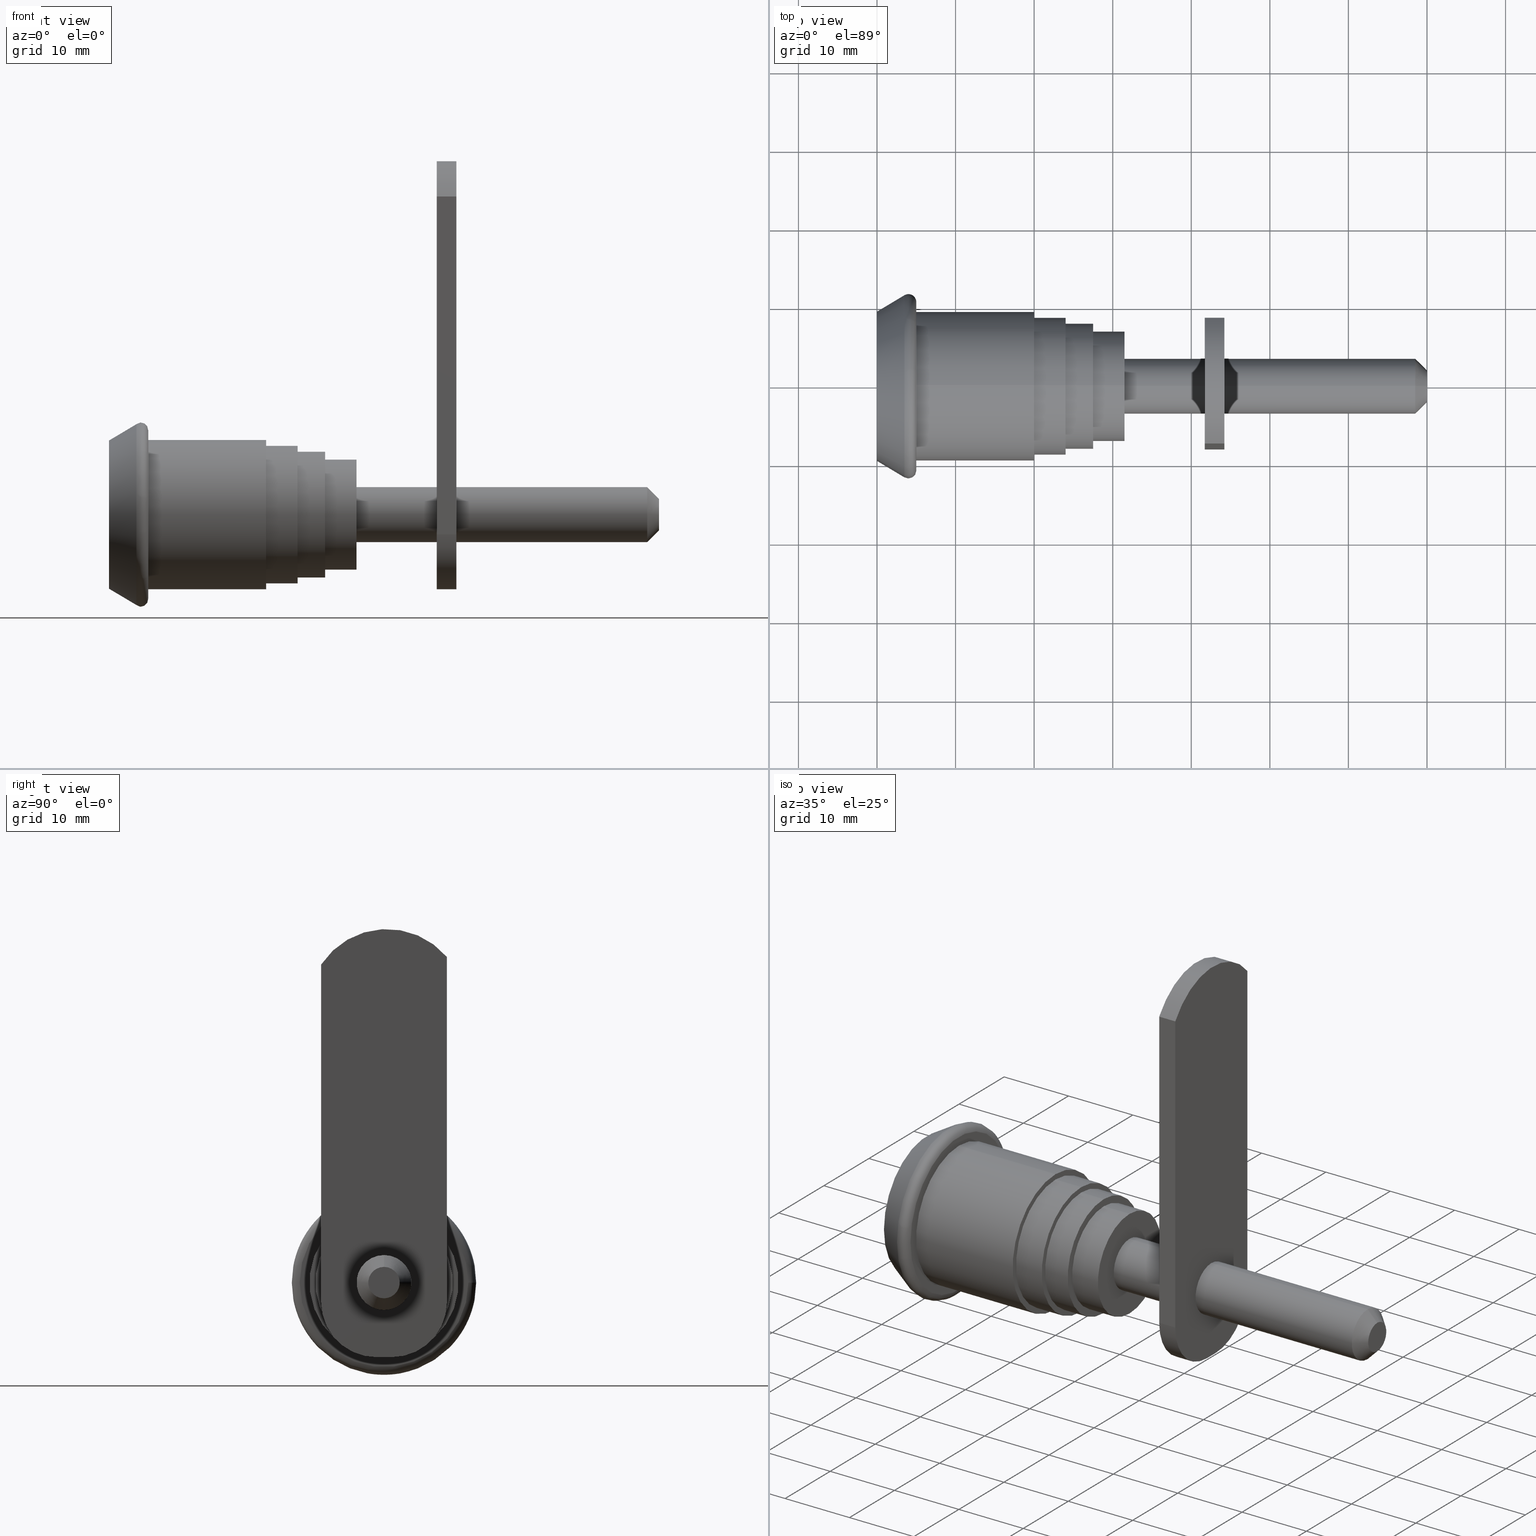
[diagram: canonical four-view strip — front | top / right | iso, engineering-drawing reading convention]
A machine part, canonical four-view strip (front | top / right | iso — engineering-drawing reading convention). The complete STEP part file that produces these views, byte-faithful:
ISO-10303-21;
HEADER;
/****************************************************************
 * Generated by software with PDE/Lib inside                    *
 * PDElib Version v4.4, created Mon 02/23/2004                  *
 * International Technegroup Inc. (www.iti-oh.com)              *
 ****************************************************************/
FILE_DESCRIPTION(('STEP AP203'),'2;1');
FILE_NAME('24.001.00.stp','2011-03-21T16:09:42',(''),(''),'2009.3.110','THINKDESIGN','');
FILE_SCHEMA(('CONFIG_CONTROL_DESIGN'));
ENDSEC;
DATA;
#2=CARTESIAN_POINT('',(41.717976448594527,0.361019487802878,34.999999999859938));
#3=DIRECTION('',(1.0,0.0,0.0));
#4=DIRECTION('',(0.0,1.0,1.224647E-016));
#5=AXIS2_PLACEMENT_3D('',#2,#3,#4);
#6=CYLINDRICAL_SURFACE('',#5,9.999999999960073);
#7=CARTESIAN_POINT('',(41.717976448594527,7.999999999968168,41.453369409242946));
#8=VERTEX_POINT('',#7);
#9=CARTESIAN_POINT('',(41.717976448594527,-7.999999999968168,40.485740890962461));
#10=VERTEX_POINT('',#9);
#11=CARTESIAN_POINT('',(41.717976448594527,0.361019487802878,34.999999999859938));
#12=DIRECTION('',(1.0,0.0,0.0));
#13=DIRECTION('',(0.0,-1.0,0.0));
#14=AXIS2_PLACEMENT_3D('',#11,#12,#13);
#15=CIRCLE('',#14,9.999999999960073);
#16=EDGE_CURVE('',#8,#10,#15,.T.);
#17=ORIENTED_EDGE('',*,*,#16,.T.);
#18=CARTESIAN_POINT('',(44.217976448584523,-7.999999999968168,40.485740890962461));
#19=VERTEX_POINT('',#18);
#20=CARTESIAN_POINT('',(44.217976448584523,-7.999999999968168,40.485740890962461));
#21=DIRECTION('',(-1.0,0.0,0.0));
#22=VECTOR('',#21,2.499999999989996);
#23=LINE('',#20,#22);
#24=EDGE_CURVE('',#19,#10,#23,.T.);
#25=ORIENTED_EDGE('',*,*,#24,.F.);
#26=CARTESIAN_POINT('',(44.217976448584523,7.999999999968168,41.453369409242946));
#27=VERTEX_POINT('',#26);
#28=CARTESIAN_POINT('',(44.217976448584523,0.361019487802878,34.999999999859938));
#29=DIRECTION('',(1.0,0.0,0.0));
#30=DIRECTION('',(0.0,-1.0,0.0));
#31=AXIS2_PLACEMENT_3D('',#28,#29,#30);
#32=CIRCLE('',#31,9.999999999960073);
#33=EDGE_CURVE('',#27,#19,#32,.T.);
#34=ORIENTED_EDGE('',*,*,#33,.F.);
#35=CARTESIAN_POINT('',(41.717976448594527,7.999999999968168,41.453369409242946));
#36=DIRECTION('',(1.0,0.0,0.0));
#37=VECTOR('',#36,2.499999999989996);
#38=LINE('',#35,#37);
#39=EDGE_CURVE('',#8,#27,#38,.T.);
#40=ORIENTED_EDGE('',*,*,#39,.F.);
#41=EDGE_LOOP('',(#17,#25,#34,#40));
#42=FACE_OUTER_BOUND('',#41,.T.);
#43=ADVANCED_FACE('',(#42),#6,.T.);
#44=CARTESIAN_POINT('',(41.717976448594527,8.000039370047489,-9.500039370041323));
#45=DIRECTION('',(-1.0,0.0,0.0));
#46=DIRECTION('',(0.0,-1.0,0.0));
#47=AXIS2_PLACEMENT_3D('',#44,#45,#46);
#48=PLANE('',#47);
#49=CARTESIAN_POINT('',(41.717976448594527,7.999999999968168,-2.499999999962002));
#50=VERTEX_POINT('',#49);
#51=CARTESIAN_POINT('',(41.717976448594527,7.999999999968168,41.453369409242946));
#52=DIRECTION('',(0.0,0.0,-1.0));
#53=VECTOR('',#52,43.953369409204946);
#54=LINE('',#51,#53);
#55=EDGE_CURVE('',#8,#50,#54,.T.);
#56=ORIENTED_EDGE('',*,*,#55,.T.);
#57=CARTESIAN_POINT('',(41.717976448594527,0.999999999968168,-9.499999999962002));
#58=VERTEX_POINT('',#57);
#59=CARTESIAN_POINT('',(41.717976448594527,0.999999999968168,-2.499999999962002));
#60=DIRECTION('',(1.0,0.0,0.0));
#61=DIRECTION('',(0.0,0.0,-1.0));
#62=AXIS2_PLACEMENT_3D('',#59,#60,#61);
#63=CIRCLE('',#62,7.0);
#64=EDGE_CURVE('',#58,#50,#63,.T.);
#65=ORIENTED_EDGE('',*,*,#64,.F.);
#66=CARTESIAN_POINT('',(41.717976448594527,-0.999999999968168,-9.499999999962002));
#67=VERTEX_POINT('',#66);
#68=CARTESIAN_POINT('',(41.717976448594527,-0.999999999968168,-9.499999999962002));
#69=DIRECTION('',(0.0,1.0,0.0));
#70=VECTOR('',#69,1.999999999936335);
#71=LINE('',#68,#70);
#72=EDGE_CURVE('',#67,#58,#71,.T.);
#73=ORIENTED_EDGE('',*,*,#72,.F.);
#74=CARTESIAN_POINT('',(41.717976448594527,-7.999999999968168,-2.499999999962002));
#75=VERTEX_POINT('',#74);
#76=CARTESIAN_POINT('',(41.717976448594527,-0.999999999968168,-2.499999999962002));
#77=DIRECTION('',(-1.0,0.0,0.0));
#78=DIRECTION('',(0.0,0.0,-1.0));
#79=AXIS2_PLACEMENT_3D('',#76,#77,#78);
#80=CIRCLE('',#79,7.0);
#81=EDGE_CURVE('',#67,#75,#80,.T.);
#82=ORIENTED_EDGE('',*,*,#81,.T.);
#83=CARTESIAN_POINT('',(41.717976448594527,-7.999999999968168,40.485740890962461));
#84=DIRECTION('',(0.0,0.0,-1.0));
#85=VECTOR('',#84,42.985740890924461);
#86=LINE('',#83,#85);
#87=EDGE_CURVE('',#10,#75,#86,.T.);
#88=ORIENTED_EDGE('',*,*,#87,.F.);
#89=ORIENTED_EDGE('',*,*,#16,.F.);
#90=EDGE_LOOP('',(#56,#65,#73,#82,#88,#89));
#91=FACE_OUTER_BOUND('',#90,.T.);
#92=ADVANCED_FACE('',(#91),#48,.T.);
#93=CARTESIAN_POINT('',(44.217976448584523,-0.999999999968168,-2.499999999962002));
#94=DIRECTION('',(-1.0,0.0,0.0));
#95=DIRECTION('',(0.0,0.0,-1.0));
#96=AXIS2_PLACEMENT_3D('',#93,#94,#95);
#97=CYLINDRICAL_SURFACE('',#96,7.0);
#98=CARTESIAN_POINT('',(44.217976448584523,-0.999999999968168,-9.499999999962002));
#99=VERTEX_POINT('',#98);
#100=CARTESIAN_POINT('',(44.217976448584523,-7.999999999968168,-2.499999999962002));
#101=VERTEX_POINT('',#100);
#102=CARTESIAN_POINT('',(44.217976448584523,-0.999999999968168,-2.499999999962002));
#103=DIRECTION('',(-1.0,0.0,0.0));
#104=DIRECTION('',(0.0,0.0,-1.0));
#105=AXIS2_PLACEMENT_3D('',#102,#103,#104);
#106=CIRCLE('',#105,7.0);
#107=EDGE_CURVE('',#99,#101,#106,.T.);
#108=ORIENTED_EDGE('',*,*,#107,.T.);
#109=CARTESIAN_POINT('',(44.217976448584523,-7.999999999968168,-2.499999999962002));
#110=DIRECTION('',(-1.0,0.0,0.0));
#111=VECTOR('',#110,2.499999999989996);
#112=LINE('',#109,#111);
#113=EDGE_CURVE('',#101,#75,#112,.T.);
#114=ORIENTED_EDGE('',*,*,#113,.T.);
#115=ORIENTED_EDGE('',*,*,#81,.F.);
#116=CARTESIAN_POINT('',(44.217976448584523,-0.999999999968168,-9.499999999962002));
#117=DIRECTION('',(-1.0,0.0,0.0));
#118=VECTOR('',#117,2.499999999989996);
#119=LINE('',#116,#118);
#120=EDGE_CURVE('',#99,#67,#119,.T.);
#121=ORIENTED_EDGE('',*,*,#120,.F.);
#122=EDGE_LOOP('',(#108,#114,#115,#121));
#123=FACE_OUTER_BOUND('',#122,.T.);
#124=ADVANCED_FACE('',(#123),#97,.T.);
#125=CARTESIAN_POINT('',(44.217976448584523,-8.000039370047489,-9.500039370041323));
#126=DIRECTION('',(1.0,0.0,0.0));
#127=DIRECTION('',(0.0,1.0,0.0));
#128=AXIS2_PLACEMENT_3D('',#125,#126,#127);
#129=PLANE('',#128);
#130=ORIENTED_EDGE('',*,*,#33,.T.);
#131=CARTESIAN_POINT('',(44.217976448584523,-7.999999999968168,40.485740890962461));
#132=DIRECTION('',(0.0,0.0,-1.0));
#133=VECTOR('',#132,42.985740890924461);
#134=LINE('',#131,#133);
#135=EDGE_CURVE('',#19,#101,#134,.T.);
#136=ORIENTED_EDGE('',*,*,#135,.T.);
#137=ORIENTED_EDGE('',*,*,#107,.F.);
#138=CARTESIAN_POINT('',(44.217976448584523,0.999999999968168,-9.499999999962002));
#139=VERTEX_POINT('',#138);
#140=CARTESIAN_POINT('',(44.217976448584523,0.999999999968168,-9.499999999962002));
#141=DIRECTION('',(0.0,-1.0,0.0));
#142=VECTOR('',#141,1.999999999936335);
#143=LINE('',#140,#142);
#144=EDGE_CURVE('',#139,#99,#143,.T.);
#145=ORIENTED_EDGE('',*,*,#144,.F.);
#146=CARTESIAN_POINT('',(44.217976448584523,7.999999999968168,-2.499999999962002));
#147=VERTEX_POINT('',#146);
#148=CARTESIAN_POINT('',(44.217976448584523,0.999999999968168,-2.499999999962002));
#149=DIRECTION('',(1.0,0.0,0.0));
#150=DIRECTION('',(0.0,0.0,-1.0));
#151=AXIS2_PLACEMENT_3D('',#148,#149,#150);
#152=CIRCLE('',#151,7.0);
#153=EDGE_CURVE('',#139,#147,#152,.T.);
#154=ORIENTED_EDGE('',*,*,#153,.T.);
#155=CARTESIAN_POINT('',(44.217976448584523,7.999999999968168,41.453369409242946));
#156=DIRECTION('',(0.0,0.0,-1.0));
#157=VECTOR('',#156,43.953369409204946);
#158=LINE('',#155,#157);
#159=EDGE_CURVE('',#27,#147,#158,.T.);
#160=ORIENTED_EDGE('',*,*,#159,.F.);
#161=EDGE_LOOP('',(#130,#136,#137,#145,#154,#160));
#162=FACE_OUTER_BOUND('',#161,.T.);
#163=ADVANCED_FACE('',(#162),#129,.T.);
#164=CARTESIAN_POINT('',(41.717976448594527,0.999999999968168,-2.499999999962002));
#165=DIRECTION('',(1.0,0.0,0.0));
#166=DIRECTION('',(0.0,0.0,-1.0));
#167=AXIS2_PLACEMENT_3D('',#164,#165,#166);
#168=CYLINDRICAL_SURFACE('',#167,7.0);
#169=ORIENTED_EDGE('',*,*,#64,.T.);
#170=CARTESIAN_POINT('',(41.717976448594527,7.999999999968168,-2.499999999962002));
#171=DIRECTION('',(1.0,0.0,0.0));
#172=VECTOR('',#171,2.499999999989996);
#173=LINE('',#170,#172);
#174=EDGE_CURVE('',#50,#147,#173,.T.);
#175=ORIENTED_EDGE('',*,*,#174,.T.);
#176=ORIENTED_EDGE('',*,*,#153,.F.);
#177=CARTESIAN_POINT('',(41.717976448594527,0.999999999968168,-9.499999999962002));
#178=DIRECTION('',(1.0,0.0,0.0));
#179=VECTOR('',#178,2.499999999989996);
#180=LINE('',#177,#179);
#181=EDGE_CURVE('',#58,#139,#180,.T.);
#182=ORIENTED_EDGE('',*,*,#181,.F.);
#183=EDGE_LOOP('',(#169,#175,#176,#182));
#184=FACE_OUTER_BOUND('',#183,.T.);
#185=ADVANCED_FACE('',(#184),#168,.T.);
#186=CARTESIAN_POINT('',(41.717937078515206,-7.999999999968168,-9.500039370041323));
#187=DIRECTION('',(0.0,-1.0,0.0));
#188=DIRECTION('',(1.0,0.0,0.0));
#189=AXIS2_PLACEMENT_3D('',#186,#187,#188);
#190=PLANE('',#189);
#191=ORIENTED_EDGE('',*,*,#24,.T.);
#192=ORIENTED_EDGE('',*,*,#87,.T.);
#193=ORIENTED_EDGE('',*,*,#113,.F.);
#194=ORIENTED_EDGE('',*,*,#135,.F.);
#195=EDGE_LOOP('',(#191,#192,#193,#194));
#196=FACE_OUTER_BOUND('',#195,.T.);
#197=ADVANCED_FACE('',(#196),#190,.T.);
#198=CARTESIAN_POINT('',(41.467971724161998,9.600004724395149,-9.499999999962002));
#199=DIRECTION('',(0.0,0.0,-1.0));
#200=DIRECTION('',(1.0,0.0,0.0));
#201=AXIS2_PLACEMENT_3D('',#198,#199,#200);
#202=PLANE('',#201);
#203=ORIENTED_EDGE('',*,*,#181,.T.);
#204=ORIENTED_EDGE('',*,*,#144,.T.);
#205=ORIENTED_EDGE('',*,*,#120,.T.);
#206=ORIENTED_EDGE('',*,*,#72,.T.);
#207=EDGE_LOOP('',(#203,#204,#205,#206));
#208=FACE_OUTER_BOUND('',#207,.T.);
#209=ADVANCED_FACE('',(#208),#202,.T.);
#210=CARTESIAN_POINT('',(44.218015818663844,7.999999999968168,-9.500039370041323));
#211=DIRECTION('',(0.0,1.0,0.0));
#212=DIRECTION('',(-1.0,0.0,0.0));
#213=AXIS2_PLACEMENT_3D('',#210,#211,#212);
#214=PLANE('',#213);
#215=ORIENTED_EDGE('',*,*,#39,.T.);
#216=ORIENTED_EDGE('',*,*,#159,.T.);
#217=ORIENTED_EDGE('',*,*,#174,.F.);
#218=ORIENTED_EDGE('',*,*,#55,.F.);
#219=EDGE_LOOP('',(#215,#216,#217,#218));
#220=FACE_OUTER_BOUND('',#219,.T.);
#221=ADVANCED_FACE('',(#220),#214,.T.);
#222=CLOSED_SHELL('',(#43,#92,#124,#163,#185,#197,#209,#221));
#223=MANIFOLD_SOLID_BREP('',#222);
#224=CARTESIAN_POINT('',(4.999999999979991,-21.467619235212624,-21.467619235212624));
#225=DIRECTION('',(-1.0,0.0,0.0));
#226=DIRECTION('',(0.0,0.0,1.0));
#227=AXIS2_PLACEMENT_3D('',#224,#225,#226);
#228=PLANE('',#227);
#229=CARTESIAN_POINT('',(4.999999999979991,10.733809617606312,0.0));
#230=VERTEX_POINT('',#229);
#231=CARTESIAN_POINT('',(4.999999999979991,-10.733809617606312,0.0));
#232=VERTEX_POINT('',#231);
#233=CARTESIAN_POINT('',(4.999999999979991,0.0,0.0));
#234=DIRECTION('',(1.0,0.0,0.0));
#235=DIRECTION('',(0.0,1.0,0.0));
#236=AXIS2_PLACEMENT_3D('',#233,#234,#235);
#237=CIRCLE('',#236,10.733809617606312);
#238=EDGE_CURVE('',#230,#232,#237,.T.);
#239=ORIENTED_EDGE('',*,*,#238,.T.);
#240=CARTESIAN_POINT('',(4.999999999979991,0.0,0.0));
#241=DIRECTION('',(1.0,0.0,0.0));
#242=DIRECTION('',(0.0,1.0,0.0));
#243=AXIS2_PLACEMENT_3D('',#240,#241,#242);
#244=CIRCLE('',#243,10.733809617606312);
#245=EDGE_CURVE('',#232,#230,#244,.T.);
#246=ORIENTED_EDGE('',*,*,#245,.T.);
#247=EDGE_LOOP('',(#239,#246));
#248=FACE_OUTER_BOUND('',#247,.T.);
#249=CARTESIAN_POINT('',(4.999999999979991,0.0,-9.499999999961801));
#250=VERTEX_POINT('',#249);
#251=CARTESIAN_POINT('',(4.999999999979991,0.0,9.499999999961801));
#252=VERTEX_POINT('',#251);
#253=CARTESIAN_POINT('',(4.999999999979991,0.0,0.0));
#254=DIRECTION('',(1.0,0.0,0.0));
#255=DIRECTION('',(0.0,0.0,1.0));
#256=AXIS2_PLACEMENT_3D('',#253,#254,#255);
#257=CIRCLE('',#256,9.499999999961801);
#258=EDGE_CURVE('',#250,#252,#257,.T.);
#259=ORIENTED_EDGE('',*,*,#258,.F.);
#260=CARTESIAN_POINT('',(4.999999999979991,0.0,0.0));
#261=DIRECTION('',(1.0,0.0,0.0));
#262=DIRECTION('',(0.0,0.0,1.0));
#263=AXIS2_PLACEMENT_3D('',#260,#261,#262);
#264=CIRCLE('',#263,9.499999999961801);
#265=EDGE_CURVE('',#252,#250,#264,.T.);
#266=ORIENTED_EDGE('',*,*,#265,.F.);
#267=EDGE_LOOP('',(#259,#266));
#268=FACE_BOUND('',#267,.T.);
#269=ADVANCED_FACE('',(#248,#268),#228,.F.);
#270=CARTESIAN_POINT('',(4.999999999979991,10.733809617606312,0.0));
#271=CARTESIAN_POINT('',(4.999999999979991,10.733809617606312,10.733809617606312));
#272=CARTESIAN_POINT('',(4.999999999979991,0.0,10.733809617606312));
#273=CARTESIAN_POINT('',(4.999999999979991,-10.733809617606312,10.733809617606312));
#274=CARTESIAN_POINT('',(4.999999999979991,-10.733809617606312,0.0));
#275=CARTESIAN_POINT('',(4.999999999979991,-10.733809617606312,-10.733809617606312));
#276=CARTESIAN_POINT('',(4.999999999979991,0.0,-10.733809617606312));
#277=CARTESIAN_POINT('',(4.999999999979991,10.733809617606312,-10.733809617606312));
#278=CARTESIAN_POINT('',(4.999999999979991,10.733809617606312,0.0));
#279=CARTESIAN_POINT('',(4.999999999979991,11.316780475255257,0.0));
#280=CARTESIAN_POINT('',(4.999999999979991,11.316780475255259,11.316780475255259));
#281=CARTESIAN_POINT('',(4.999999999979991,0.0,11.316780475255257));
#282=CARTESIAN_POINT('',(4.999999999979991,-11.316780475255259,11.316780475255259));
#283=CARTESIAN_POINT('',(4.999999999979991,-11.316780475255257,0.0));
#284=CARTESIAN_POINT('',(4.999999999979991,-11.316780475255259,-11.316780475255259));
#285=CARTESIAN_POINT('',(4.999999999979991,0.0,-11.316780475255257));
#286=CARTESIAN_POINT('',(4.999999999979991,11.316780475255259,-11.316780475255259));
#287=CARTESIAN_POINT('',(4.999999999979991,11.316780475255257,0.0));
#288=CARTESIAN_POINT('',(4.492698814014823,11.604009525990527,0.0));
#289=CARTESIAN_POINT('',(4.492698814014823,11.604009525990529,11.604009525990529));
#290=CARTESIAN_POINT('',(4.492698814014823,0.0,11.604009525990527));
#291=CARTESIAN_POINT('',(4.492698814014823,-11.604009525990529,11.604009525990529));
#292=CARTESIAN_POINT('',(4.492698814014823,-11.604009525990527,0.0));
#293=CARTESIAN_POINT('',(4.492698814014823,-11.604009525990529,-11.604009525990529));
#294=CARTESIAN_POINT('',(4.492698814014823,0.0,-11.604009525990527));
#295=CARTESIAN_POINT('',(4.492698814014823,11.604009525990529,-11.604009525990529));
#296=CARTESIAN_POINT('',(4.492698814014823,11.604009525990527,0.0));
#297=CARTESIAN_POINT('',(3.985397628049653,11.891238576725794,0.0));
#298=CARTESIAN_POINT('',(3.985397628049653,11.891238576725794,11.891238576725794));
#299=CARTESIAN_POINT('',(3.985397628049653,0.0,11.891238576725794));
#300=CARTESIAN_POINT('',(3.985397628049653,-11.891238576725794,11.891238576725794));
#301=CARTESIAN_POINT('',(3.985397628049653,-11.891238576725794,0.0));
#302=CARTESIAN_POINT('',(3.985397628049653,-11.891238576725794,-11.891238576725794));
#303=CARTESIAN_POINT('',(3.985397628049653,0.0,-11.891238576725794));
#304=CARTESIAN_POINT('',(3.985397628049653,11.891238576725794,-11.891238576725794));
#305=CARTESIAN_POINT('',(3.985397628049653,11.891238576725794,0.0));
#306=CARTESIAN_POINT('',(3.485504241717141,11.591302544930739,0.0));
#307=CARTESIAN_POINT('',(3.485504241717141,11.591302544930739,11.591302544930739));
#308=CARTESIAN_POINT('',(3.485504241717141,0.0,11.591302544930739));
#309=CARTESIAN_POINT('',(3.485504241717141,-11.591302544930739,11.591302544930739));
#310=CARTESIAN_POINT('',(3.485504241717141,-11.591302544930739,0.0));
#311=CARTESIAN_POINT('',(3.485504241717141,-11.591302544930739,-11.591302544930739));
#312=CARTESIAN_POINT('',(3.485504241717141,0.0,-11.591302544930739));
#313=CARTESIAN_POINT('',(3.485504241717141,11.591302544930739,-11.591302544930739));
#314=CARTESIAN_POINT('',(3.485504241717141,11.591302544930739,0.0));
#322=(BOUNDED_SURFACE()B_SPLINE_SURFACE(2,2,((#270,#279,#288,#297,#306),(#271,#280,#289,#298,#307),(#272,#281,#290,#299,#308),(#273,#282,#291,#300,#309),(#274,#283,#292,#301,#310),(#275,#284,#293,#302,#311),(#276,#285,#294,#303,#312),(#277,#286,#295,#304,#313),(#278,#287,#296,#305,#314)),.UNSPECIFIED.,.T.,.F.,.U.)B_SPLINE_SURFACE_WITH_KNOTS((3,2,2,2,3),(3,2,3),(0.0,0.250000000000000,0.500000000000000,0.750000000000000,1.0),(0.0,0.500000000000000,1.0),.UNSPECIFIED.)GEOMETRIC_REPRESENTATION_ITEM()RATIONAL_B_SPLINE_SURFACE(((1.0,0.863915162208201,1.0,0.863915162208201,1.0),(0.707106781186548,0.610880269567295,0.707106781186548,0.610880269567295,0.707106781186548),(1.0,0.863915162208201,1.0,0.863915162208201,1.0),(0.707106781186548,0.610880269567295,0.707106781186548,0.610880269567295,0.707106781186548),(1.0,0.863915162208201,1.0,0.863915162208201,1.0),(0.707106781186548,0.610880269567295,0.707106781186548,0.610880269567295,0.707106781186548),(1.0,0.863915162208201,1.0,0.863915162208201,1.0),(0.707106781186548,0.610880269567295,0.707106781186548,0.610880269567295,0.707106781186548),(1.0,0.863915162208201,1.0,0.863915162208201,1.0)))REPRESENTATION_ITEM('')SURFACE());
#323=CARTESIAN_POINT('',(3.485504241703438,11.591302544953578,0.0));
#324=VERTEX_POINT('',#323);
#325=CARTESIAN_POINT('',(3.999999998104158,10.733809617606312,0.0));
#326=DIRECTION('',(0.0,0.0,1.0));
#327=DIRECTION('',(1.0,0.0,0.0));
#328=AXIS2_PLACEMENT_3D('',#325,#326,#327);
#329=CIRCLE('',#328,1.000000001875833);
#330=EDGE_CURVE('',#230,#324,#329,.T.);
#331=ORIENTED_EDGE('',*,*,#330,.T.);
#332=CARTESIAN_POINT('',(3.485504241703438,-11.591302544953578,0.0));
#333=VERTEX_POINT('',#332);
#334=CARTESIAN_POINT('',(3.485504241703438,0.0,0.0));
#335=DIRECTION('',(1.0,0.0,0.0));
#336=DIRECTION('',(0.0,1.0,0.0));
#337=AXIS2_PLACEMENT_3D('',#334,#335,#336);
#338=CIRCLE('',#337,11.591302544953578);
#339=EDGE_CURVE('',#324,#333,#338,.T.);
#340=ORIENTED_EDGE('',*,*,#339,.T.);
#341=CARTESIAN_POINT('',(3.485504241703438,0.0,0.0));
#342=DIRECTION('',(1.0,0.0,0.0));
#343=DIRECTION('',(0.0,1.0,0.0));
#344=AXIS2_PLACEMENT_3D('',#341,#342,#343);
#345=CIRCLE('',#344,11.591302544953578);
#346=EDGE_CURVE('',#333,#324,#345,.T.);
#347=ORIENTED_EDGE('',*,*,#346,.T.);
#348=ORIENTED_EDGE('',*,*,#330,.F.);
#349=ORIENTED_EDGE('',*,*,#245,.F.);
#350=ORIENTED_EDGE('',*,*,#238,.F.);
#351=EDGE_LOOP('',(#331,#340,#347,#348,#349,#350));
#352=FACE_OUTER_BOUND('',#351,.T.);
#353=ADVANCED_FACE('',(#352),#322,.F.);
#354=CARTESIAN_POINT('',(3.485504241703438,11.591302544953578,0.0));
#355=CARTESIAN_POINT('',(3.485504241703438,11.591302544953578,11.591302544953578));
#356=CARTESIAN_POINT('',(3.485504241703438,0.0,11.591302544953578));
#357=CARTESIAN_POINT('',(3.485504241703438,-11.591302544953578,11.591302544953578));
#358=CARTESIAN_POINT('',(3.485504241703438,-11.591302544953578,0.0));
#359=CARTESIAN_POINT('',(3.485504241703438,-11.591302544953578,-11.591302544953578));
#360=CARTESIAN_POINT('',(3.485504241703438,0.0,-11.591302544953578));
#361=CARTESIAN_POINT('',(3.485504241703438,11.591302544953578,-11.591302544953578));
#362=CARTESIAN_POINT('',(3.485504241703438,11.591302544953578,0.0));
#363=CARTESIAN_POINT('',(0.0,9.499999999961801,0.0));
#364=CARTESIAN_POINT('',(0.0,9.499999999961801,9.499999999961801));
#365=CARTESIAN_POINT('',(0.0,0.0,9.499999999961801));
#366=CARTESIAN_POINT('',(0.0,-9.499999999961801,9.499999999961801));
#367=CARTESIAN_POINT('',(0.0,-9.499999999961801,0.0));
#368=CARTESIAN_POINT('',(0.0,-9.499999999961801,-9.499999999961801));
#369=CARTESIAN_POINT('',(0.0,0.0,-9.499999999961801));
#370=CARTESIAN_POINT('',(0.0,9.499999999961801,-9.499999999961801));
#371=CARTESIAN_POINT('',(0.0,9.499999999961801,0.0));
#379=(BOUNDED_SURFACE()B_SPLINE_SURFACE(2,1,((#354,#363),(#355,#364),(#356,#365),(#357,#366),(#358,#367),(#359,#368),(#360,#369),(#361,#370),(#362,#371)),.UNSPECIFIED.,.T.,.F.,.U.)B_SPLINE_SURFACE_WITH_KNOTS((3,2,2,2,3),(2,2),(0.0,0.250000000000000,0.500000000000000,0.750000000000000,1.0),(0.0,4.064761512514817),.UNSPECIFIED.)GEOMETRIC_REPRESENTATION_ITEM()RATIONAL_B_SPLINE_SURFACE(((1.0,1.0),(0.707106781186548,0.707106781186548),(1.0,1.0),(0.707106781186548,0.707106781186548),(1.0,1.0),(0.707106781186548,0.707106781186548),(1.0,1.0),(0.707106781186548,0.707106781186548),(1.0,1.0)))REPRESENTATION_ITEM('')SURFACE());
#380=CARTESIAN_POINT('',(0.0,9.499999999961801,0.0));
#381=VERTEX_POINT('',#380);
#382=CARTESIAN_POINT('',(3.485504241703438,11.591302544953578,0.0));
#383=DIRECTION('',(-0.857492925715831,-0.514495755422048,0.0));
#384=VECTOR('',#383,4.064761512514817);
#385=LINE('',#382,#384);
#386=EDGE_CURVE('',#324,#381,#385,.T.);
#387=ORIENTED_EDGE('',*,*,#386,.T.);
#388=CARTESIAN_POINT('',(0.0,-9.499999999961801,0.0));
#389=VERTEX_POINT('',#388);
#390=CARTESIAN_POINT('',(0.0,0.0,0.0));
#391=DIRECTION('',(1.0,0.0,0.0));
#392=DIRECTION('',(0.0,1.0,0.0));
#393=AXIS2_PLACEMENT_3D('',#390,#391,#392);
#394=CIRCLE('',#393,9.499999999961801);
#395=EDGE_CURVE('',#381,#389,#394,.T.);
#396=ORIENTED_EDGE('',*,*,#395,.T.);
#397=CARTESIAN_POINT('',(0.0,0.0,0.0));
#398=DIRECTION('',(1.0,0.0,0.0));
#399=DIRECTION('',(0.0,1.0,0.0));
#400=AXIS2_PLACEMENT_3D('',#397,#398,#399);
#401=CIRCLE('',#400,9.499999999961801);
#402=EDGE_CURVE('',#389,#381,#401,.T.);
#403=ORIENTED_EDGE('',*,*,#402,.T.);
#404=ORIENTED_EDGE('',*,*,#386,.F.);
#405=ORIENTED_EDGE('',*,*,#346,.F.);
#406=ORIENTED_EDGE('',*,*,#339,.F.);
#407=EDGE_LOOP('',(#387,#396,#403,#404,#405,#406));
#408=FACE_OUTER_BOUND('',#407,.T.);
#409=ADVANCED_FACE('',(#408),#379,.F.);
#410=CARTESIAN_POINT('',(0.0,18.999999999923602,-18.999999999923602));
#411=DIRECTION('',(1.0,0.0,0.0));
#412=DIRECTION('',(0.0,0.0,1.0));
#413=AXIS2_PLACEMENT_3D('',#410,#411,#412);
#414=PLANE('',#413);
#415=ORIENTED_EDGE('',*,*,#402,.F.);
#416=ORIENTED_EDGE('',*,*,#395,.F.);
#417=EDGE_LOOP('',(#415,#416));
#418=FACE_OUTER_BOUND('',#417,.T.);
#419=CARTESIAN_POINT('',(0.0,0.361019487802878,-7.999999999968002));
#420=VERTEX_POINT('',#419);
#421=CARTESIAN_POINT('',(0.0,0.361019487802878,7.999999999968002));
#422=VERTEX_POINT('',#421);
#423=CARTESIAN_POINT('',(0.0,0.361019487802878,0.0));
#424=DIRECTION('',(-1.0,0.0,0.0));
#425=DIRECTION('',(0.0,0.0,1.0));
#426=AXIS2_PLACEMENT_3D('',#423,#424,#425);
#427=CIRCLE('',#426,7.999999999968002);
#428=EDGE_CURVE('',#420,#422,#427,.T.);
#429=ORIENTED_EDGE('',*,*,#428,.F.);
#430=CARTESIAN_POINT('',(0.0,0.361019487802878,0.0));
#431=DIRECTION('',(-1.0,0.0,0.0));
#432=DIRECTION('',(0.0,0.0,1.0));
#433=AXIS2_PLACEMENT_3D('',#430,#431,#432);
#434=CIRCLE('',#433,7.999999999968002);
#435=EDGE_CURVE('',#422,#420,#434,.T.);
#436=ORIENTED_EDGE('',*,*,#435,.F.);
#437=EDGE_LOOP('',(#429,#436));
#438=FACE_BOUND('',#437,.T.);
#439=ADVANCED_FACE('',(#418,#438),#414,.F.);
#440=CARTESIAN_POINT('',(4.999999999979991,0.0,0.0));
#441=DIRECTION('',(1.0,0.0,0.0));
#442=DIRECTION('',(0.0,0.0,1.0));
#443=AXIS2_PLACEMENT_3D('',#440,#441,#442);
#444=CYLINDRICAL_SURFACE('',#443,9.499999999961801);
#445=CARTESIAN_POINT('',(20.000022939499559,0.0,-9.499999999961801));
#446=VERTEX_POINT('',#445);
#447=CARTESIAN_POINT('',(20.000022939499559,0.0,9.499999999961801));
#448=VERTEX_POINT('',#447);
#449=CARTESIAN_POINT('',(20.000022939499559,0.0,0.0));
#450=DIRECTION('',(1.0,0.0,0.0));
#451=DIRECTION('',(0.0,0.0,1.0));
#452=AXIS2_PLACEMENT_3D('',#449,#450,#451);
#453=CIRCLE('',#452,9.499999999961801);
#454=EDGE_CURVE('',#446,#448,#453,.T.);
#455=ORIENTED_EDGE('',*,*,#454,.F.);
#456=CARTESIAN_POINT('',(20.000022939499559,0.0,0.0));
#457=DIRECTION('',(1.0,0.0,0.0));
#458=DIRECTION('',(0.0,0.0,1.0));
#459=AXIS2_PLACEMENT_3D('',#456,#457,#458);
#460=CIRCLE('',#459,9.499999999961801);
#461=EDGE_CURVE('',#448,#446,#460,.T.);
#462=ORIENTED_EDGE('',*,*,#461,.F.);
#463=CARTESIAN_POINT('',(4.999999999979991,0.0,9.499999999961801));
#464=DIRECTION('',(1.0,0.0,0.0));
#465=VECTOR('',#464,15.000022939519567);
#466=LINE('',#463,#465);
#467=EDGE_CURVE('',#252,#448,#466,.T.);
#468=ORIENTED_EDGE('',*,*,#467,.F.);
#469=ORIENTED_EDGE('',*,*,#265,.T.);
#470=ORIENTED_EDGE('',*,*,#258,.T.);
#471=ORIENTED_EDGE('',*,*,#467,.T.);
#472=EDGE_LOOP('',(#455,#462,#468,#469,#470,#471));
#473=FACE_OUTER_BOUND('',#472,.T.);
#474=ADVANCED_FACE('',(#473),#444,.T.);
#475=CARTESIAN_POINT('',(20.000022939499559,11.400004724391692,-11.400004724391657));
#476=DIRECTION('',(1.0,0.0,0.0));
#477=DIRECTION('',(0.0,0.0,1.0));
#478=AXIS2_PLACEMENT_3D('',#475,#476,#477);
#479=PLANE('',#478);
#480=ORIENTED_EDGE('',*,*,#461,.T.);
#481=ORIENTED_EDGE('',*,*,#454,.T.);
#482=EDGE_LOOP('',(#480,#481));
#483=FACE_OUTER_BOUND('',#482,.T.);
#484=CARTESIAN_POINT('',(20.000022939499559,0.0,-8.749999999964530));
#485=VERTEX_POINT('',#484);
#486=CARTESIAN_POINT('',(20.000022939499559,0.0,8.749999999964530));
#487=VERTEX_POINT('',#486);
#488=CARTESIAN_POINT('',(20.000022939499559,0.0,0.0));
#489=DIRECTION('',(1.0,0.0,0.0));
#490=DIRECTION('',(0.0,0.0,1.0));
#491=AXIS2_PLACEMENT_3D('',#488,#489,#490);
#492=CIRCLE('',#491,8.749999999964530);
#493=EDGE_CURVE('',#485,#487,#492,.T.);
#494=ORIENTED_EDGE('',*,*,#493,.F.);
#495=CARTESIAN_POINT('',(20.000022939499559,0.0,0.0));
#496=DIRECTION('',(1.0,0.0,0.0));
#497=DIRECTION('',(0.0,0.0,1.0));
#498=AXIS2_PLACEMENT_3D('',#495,#496,#497);
#499=CIRCLE('',#498,8.749999999964530);
#500=EDGE_CURVE('',#487,#485,#499,.T.);
#501=ORIENTED_EDGE('',*,*,#500,.F.);
#502=EDGE_LOOP('',(#494,#501));
#503=FACE_BOUND('',#502,.T.);
#504=ADVANCED_FACE('',(#483,#503),#479,.T.);
#505=CARTESIAN_POINT('',(20.000022939499559,0.0,0.0));
#506=DIRECTION('',(1.0,0.0,0.0));
#507=DIRECTION('',(0.0,0.0,1.0));
#508=AXIS2_PLACEMENT_3D('',#505,#506,#507);
#509=CYLINDRICAL_SURFACE('',#508,8.749999999964530);
#510=CARTESIAN_POINT('',(24.000045879003210,0.0,-8.749999999964530));
#511=VERTEX_POINT('',#510);
#512=CARTESIAN_POINT('',(24.000045879003210,0.0,8.749999999964530));
#513=VERTEX_POINT('',#512);
#514=CARTESIAN_POINT('',(24.000045879003210,0.0,0.0));
#515=DIRECTION('',(1.0,0.0,0.0));
#516=DIRECTION('',(0.0,0.0,1.0));
#517=AXIS2_PLACEMENT_3D('',#514,#515,#516);
#518=CIRCLE('',#517,8.749999999964530);
#519=EDGE_CURVE('',#511,#513,#518,.T.);
#520=ORIENTED_EDGE('',*,*,#519,.F.);
#521=CARTESIAN_POINT('',(24.000045879003210,0.0,0.0));
#522=DIRECTION('',(1.0,0.0,0.0));
#523=DIRECTION('',(0.0,0.0,1.0));
#524=AXIS2_PLACEMENT_3D('',#521,#522,#523);
#525=CIRCLE('',#524,8.749999999964530);
#526=EDGE_CURVE('',#513,#511,#525,.T.);
#527=ORIENTED_EDGE('',*,*,#526,.F.);
#528=CARTESIAN_POINT('',(20.000022939499559,0.0,8.749999999964530));
#529=DIRECTION('',(1.0,0.0,0.0));
#530=VECTOR('',#529,4.000022939503651);
#531=LINE('',#528,#530);
#532=EDGE_CURVE('',#487,#513,#531,.T.);
#533=ORIENTED_EDGE('',*,*,#532,.F.);
#534=ORIENTED_EDGE('',*,*,#500,.T.);
#535=ORIENTED_EDGE('',*,*,#493,.T.);
#536=ORIENTED_EDGE('',*,*,#532,.T.);
#537=EDGE_LOOP('',(#520,#527,#533,#534,#535,#536));
#538=FACE_OUTER_BOUND('',#537,.T.);
#539=ADVANCED_FACE('',(#538),#509,.T.);
#540=CARTESIAN_POINT('',(24.000045879003210,10.500004724392966,-10.500004724392934));
#541=DIRECTION('',(1.0,0.0,0.0));
#542=DIRECTION('',(0.0,0.0,1.0));
#543=AXIS2_PLACEMENT_3D('',#540,#541,#542);
#544=PLANE('',#543);
#545=ORIENTED_EDGE('',*,*,#526,.T.);
#546=ORIENTED_EDGE('',*,*,#519,.T.);
#547=EDGE_LOOP('',(#545,#546));
#548=FACE_OUTER_BOUND('',#547,.T.);
#549=CARTESIAN_POINT('',(24.000045879003210,0.0,-7.999999999968168));
#550=VERTEX_POINT('',#549);
#551=CARTESIAN_POINT('',(24.000045879003210,0.0,7.999999999968168));
#552=VERTEX_POINT('',#551);
#553=CARTESIAN_POINT('',(24.000045879003210,0.0,0.0));
#554=DIRECTION('',(1.0,0.0,0.0));
#555=DIRECTION('',(0.0,0.0,1.0));
#556=AXIS2_PLACEMENT_3D('',#553,#554,#555);
#557=CIRCLE('',#556,7.999999999968168);
#558=EDGE_CURVE('',#550,#552,#557,.T.);
#559=ORIENTED_EDGE('',*,*,#558,.F.);
#560=CARTESIAN_POINT('',(24.000045879003210,0.0,0.0));
#561=DIRECTION('',(1.0,0.0,0.0));
#562=DIRECTION('',(0.0,0.0,1.0));
#563=AXIS2_PLACEMENT_3D('',#560,#561,#562);
#564=CIRCLE('',#563,7.999999999968168);
#565=EDGE_CURVE('',#552,#550,#564,.T.);
#566=ORIENTED_EDGE('',*,*,#565,.F.);
#567=EDGE_LOOP('',(#559,#566));
#568=FACE_BOUND('',#567,.T.);
#569=ADVANCED_FACE('',(#548,#568),#544,.T.);
#570=CARTESIAN_POINT('',(24.000045879003210,0.0,0.0));
#571=DIRECTION('',(1.0,0.0,0.0));
#572=DIRECTION('',(0.0,0.0,1.0));
#573=AXIS2_PLACEMENT_3D('',#570,#571,#572);
#574=CYLINDRICAL_SURFACE('',#573,7.999999999968168);
#575=CARTESIAN_POINT('',(27.500068818492764,0.0,-7.999999999968168));
#576=VERTEX_POINT('',#575);
#577=CARTESIAN_POINT('',(27.500068818492764,0.0,7.999999999968168));
#578=VERTEX_POINT('',#577);
#579=CARTESIAN_POINT('',(27.500068818492764,0.0,0.0));
#580=DIRECTION('',(1.0,0.0,0.0));
#581=DIRECTION('',(0.0,0.0,1.0));
#582=AXIS2_PLACEMENT_3D('',#579,#580,#581);
#583=CIRCLE('',#582,7.999999999968168);
#584=EDGE_CURVE('',#576,#578,#583,.T.);
#585=ORIENTED_EDGE('',*,*,#584,.F.);
#586=CARTESIAN_POINT('',(27.500068818492764,0.0,0.0));
#587=DIRECTION('',(1.0,0.0,0.0));
#588=DIRECTION('',(0.0,0.0,1.0));
#589=AXIS2_PLACEMENT_3D('',#586,#587,#588);
#590=CIRCLE('',#589,7.999999999968168);
#591=EDGE_CURVE('',#578,#576,#590,.T.);
#592=ORIENTED_EDGE('',*,*,#591,.F.);
#593=CARTESIAN_POINT('',(24.000045879003210,0.0,7.999999999968168));
#594=DIRECTION('',(1.0,0.0,0.0));
#595=VECTOR('',#594,3.500022939489554);
#596=LINE('',#593,#595);
#597=EDGE_CURVE('',#552,#578,#596,.T.);
#598=ORIENTED_EDGE('',*,*,#597,.F.);
#599=ORIENTED_EDGE('',*,*,#565,.T.);
#600=ORIENTED_EDGE('',*,*,#558,.T.);
#601=ORIENTED_EDGE('',*,*,#597,.T.);
#602=EDGE_LOOP('',(#585,#592,#598,#599,#600,#601));
#603=FACE_OUTER_BOUND('',#602,.T.);
#604=ADVANCED_FACE('',(#603),#574,.T.);
#605=CARTESIAN_POINT('',(27.500068818492764,9.600004724395149,-9.600004724395301));
#606=DIRECTION('',(1.0,0.0,0.0));
#607=DIRECTION('',(0.0,0.0,1.0));
#608=AXIS2_PLACEMENT_3D('',#605,#606,#607);
#609=PLANE('',#608);
#610=ORIENTED_EDGE('',*,*,#591,.T.);
#611=ORIENTED_EDGE('',*,*,#584,.T.);
#612=EDGE_LOOP('',(#610,#611));
#613=FACE_OUTER_BOUND('',#612,.T.);
#614=CARTESIAN_POINT('',(27.500068818492764,0.0,-6.999999999971806));
#615=VERTEX_POINT('',#614);
#616=CARTESIAN_POINT('',(27.500068818492764,0.0,6.999999999971806));
#617=VERTEX_POINT('',#616);
#618=CARTESIAN_POINT('',(27.500068818492764,0.0,0.0));
#619=DIRECTION('',(1.0,0.0,0.0));
#620=DIRECTION('',(0.0,0.0,1.0));
#621=AXIS2_PLACEMENT_3D('',#618,#619,#620);
#622=CIRCLE('',#621,6.999999999971806);
#623=EDGE_CURVE('',#615,#617,#622,.T.);
#624=ORIENTED_EDGE('',*,*,#623,.F.);
#625=CARTESIAN_POINT('',(27.500068818492764,0.0,0.0));
#626=DIRECTION('',(1.0,0.0,0.0));
#627=DIRECTION('',(0.0,0.0,1.0));
#628=AXIS2_PLACEMENT_3D('',#625,#626,#627);
#629=CIRCLE('',#628,6.999999999971806);
#630=EDGE_CURVE('',#617,#615,#629,.T.);
#631=ORIENTED_EDGE('',*,*,#630,.F.);
#632=EDGE_LOOP('',(#624,#631));
#633=FACE_BOUND('',#632,.T.);
#634=ADVANCED_FACE('',(#613,#633),#609,.T.);
#635=CARTESIAN_POINT('',(27.500068818492764,0.0,0.0));
#636=DIRECTION('',(1.0,0.0,0.0));
#637=DIRECTION('',(0.0,0.0,1.0));
#638=AXIS2_PLACEMENT_3D('',#635,#636,#637);
#639=CYLINDRICAL_SURFACE('',#638,6.999999999971806);
#640=CARTESIAN_POINT('',(31.500091757966402,0.0,-6.999999999971806));
#641=VERTEX_POINT('',#640);
#642=CARTESIAN_POINT('',(31.500091757966402,0.0,6.999999999971806));
#643=VERTEX_POINT('',#642);
#644=CARTESIAN_POINT('',(31.500091757966402,0.0,0.0));
#645=DIRECTION('',(1.0,0.0,0.0));
#646=DIRECTION('',(0.0,0.0,1.0));
#647=AXIS2_PLACEMENT_3D('',#644,#645,#646);
#648=CIRCLE('',#647,6.999999999971806);
#649=EDGE_CURVE('',#641,#643,#648,.T.);
#650=ORIENTED_EDGE('',*,*,#649,.F.);
#651=CARTESIAN_POINT('',(31.500091757966402,0.0,0.0));
#652=DIRECTION('',(1.0,0.0,0.0));
#653=DIRECTION('',(0.0,0.0,1.0));
#654=AXIS2_PLACEMENT_3D('',#651,#652,#653);
#655=CIRCLE('',#654,6.999999999971806);
#656=EDGE_CURVE('',#643,#641,#655,.T.);
#657=ORIENTED_EDGE('',*,*,#656,.F.);
#658=CARTESIAN_POINT('',(27.500068818492764,0.0,6.999999999971806));
#659=DIRECTION('',(1.0,0.0,0.0));
#660=VECTOR('',#659,4.000022939473638);
#661=LINE('',#658,#660);
#662=EDGE_CURVE('',#617,#643,#661,.T.);
#663=ORIENTED_EDGE('',*,*,#662,.F.);
#664=ORIENTED_EDGE('',*,*,#630,.T.);
#665=ORIENTED_EDGE('',*,*,#623,.T.);
#666=ORIENTED_EDGE('',*,*,#662,.T.);
#667=EDGE_LOOP('',(#650,#657,#663,#664,#665,#666));
#668=FACE_OUTER_BOUND('',#667,.T.);
#669=ADVANCED_FACE('',(#668),#639,.T.);
#670=CARTESIAN_POINT('',(31.500091757966402,8.400004724397149,-8.400004724397002));
#671=DIRECTION('',(1.0,0.0,0.0));
#672=DIRECTION('',(0.0,0.0,1.0));
#673=AXIS2_PLACEMENT_3D('',#670,#671,#672);
#674=PLANE('',#673);
#675=ORIENTED_EDGE('',*,*,#656,.T.);
#676=ORIENTED_EDGE('',*,*,#649,.T.);
#677=EDGE_LOOP('',(#675,#676));
#678=FACE_OUTER_BOUND('',#677,.T.);
#679=CARTESIAN_POINT('',(31.500091757966402,0.0,-3.499999999985448));
#680=VERTEX_POINT('',#679);
#681=CARTESIAN_POINT('',(31.500091757966402,0.0,3.499999999985448));
#682=VERTEX_POINT('',#681);
#683=CARTESIAN_POINT('',(31.500091757966402,0.0,0.0));
#684=DIRECTION('',(1.0,0.0,0.0));
#685=DIRECTION('',(0.0,0.0,1.0));
#686=AXIS2_PLACEMENT_3D('',#683,#684,#685);
#687=CIRCLE('',#686,3.499999999985448);
#688=EDGE_CURVE('',#680,#682,#687,.T.);
#689=ORIENTED_EDGE('',*,*,#688,.F.);
#690=CARTESIAN_POINT('',(31.500091757966402,0.0,0.0));
#691=DIRECTION('',(1.0,0.0,0.0));
#692=DIRECTION('',(0.0,0.0,1.0));
#693=AXIS2_PLACEMENT_3D('',#690,#691,#692);
#694=CIRCLE('',#693,3.499999999985448);
#695=EDGE_CURVE('',#682,#680,#694,.T.);
#696=ORIENTED_EDGE('',*,*,#695,.F.);
#697=EDGE_LOOP('',(#689,#696));
#698=FACE_BOUND('',#697,.T.);
#699=ADVANCED_FACE('',(#678,#698),#674,.T.);
#700=CARTESIAN_POINT('',(31.500091757966402,0.0,0.0));
#701=DIRECTION('',(1.0,0.0,0.0));
#702=DIRECTION('',(0.0,0.0,1.0));
#703=AXIS2_PLACEMENT_3D('',#700,#701,#702);
#704=CYLINDRICAL_SURFACE('',#703,3.499999999985448);
#705=ORIENTED_EDGE('',*,*,#695,.T.);
#706=ORIENTED_EDGE('',*,*,#688,.T.);
#707=CARTESIAN_POINT('',(68.500114697285881,0.0,3.499999999985448));
#708=VERTEX_POINT('',#707);
#709=CARTESIAN_POINT('',(31.500091757966402,0.0,3.499999999985448));
#710=DIRECTION('',(1.0,0.0,0.0));
#711=VECTOR('',#710,37.000022939319479);
#712=LINE('',#709,#711);
#713=EDGE_CURVE('',#682,#708,#712,.T.);
#714=ORIENTED_EDGE('',*,*,#713,.T.);
#715=CARTESIAN_POINT('',(68.500114697285881,0.0,-3.499999999985448));
#716=VERTEX_POINT('',#715);
#717=CARTESIAN_POINT('',(68.500114697285881,0.0,0.0));
#718=DIRECTION('',(1.0,0.0,0.0));
#719=DIRECTION('',(0.0,0.0,1.0));
#720=AXIS2_PLACEMENT_3D('',#717,#718,#719);
#721=CIRCLE('',#720,3.499999999985448);
#722=EDGE_CURVE('',#716,#708,#721,.T.);
#723=ORIENTED_EDGE('',*,*,#722,.F.);
#724=CARTESIAN_POINT('',(68.500114697285881,0.0,0.0));
#725=DIRECTION('',(1.0,0.0,0.0));
#726=DIRECTION('',(0.0,0.0,1.0));
#727=AXIS2_PLACEMENT_3D('',#724,#725,#726);
#728=CIRCLE('',#727,3.499999999985448);
#729=EDGE_CURVE('',#708,#716,#728,.T.);
#730=ORIENTED_EDGE('',*,*,#729,.F.);
#731=ORIENTED_EDGE('',*,*,#713,.F.);
#732=EDGE_LOOP('',(#705,#706,#714,#723,#730,#731));
#733=FACE_OUTER_BOUND('',#732,.T.);
#734=ADVANCED_FACE('',(#733),#704,.T.);
#735=CARTESIAN_POINT('',(70.000114697285881,4.200004724403698,-4.200004724404047));
#736=DIRECTION('',(1.0,0.0,0.0));
#737=DIRECTION('',(0.0,0.0,1.0));
#738=AXIS2_PLACEMENT_3D('',#735,#736,#737);
#739=PLANE('',#738);
#740=CARTESIAN_POINT('',(70.000114697285881,0.0,1.999999999985448));
#741=VERTEX_POINT('',#740);
#742=CARTESIAN_POINT('',(70.000114697285881,0.0,-1.999999999985448));
#743=VERTEX_POINT('',#742);
#744=CARTESIAN_POINT('',(70.000114697285881,0.0,0.0));
#745=DIRECTION('',(1.0,0.0,0.0));
#746=DIRECTION('',(0.0,0.0,1.0));
#747=AXIS2_PLACEMENT_3D('',#744,#745,#746);
#748=CIRCLE('',#747,1.999999999985448);
#749=EDGE_CURVE('',#741,#743,#748,.T.);
#750=ORIENTED_EDGE('',*,*,#749,.T.);
#751=CARTESIAN_POINT('',(70.000114697285881,0.0,0.0));
#752=DIRECTION('',(1.0,0.0,0.0));
#753=DIRECTION('',(0.0,0.0,1.0));
#754=AXIS2_PLACEMENT_3D('',#751,#752,#753);
#755=CIRCLE('',#754,1.999999999985448);
#756=EDGE_CURVE('',#743,#741,#755,.T.);
#757=ORIENTED_EDGE('',*,*,#756,.T.);
#758=EDGE_LOOP('',(#750,#757));
#759=FACE_OUTER_BOUND('',#758,.T.);
#760=ADVANCED_FACE('',(#759),#739,.T.);
#761=CARTESIAN_POINT('',(70.000114697285881,0.0,1.999999999985448));
#762=CARTESIAN_POINT('',(69.500114697285881,0.0,2.499999999985448));
#763=CARTESIAN_POINT('',(69.000114697285881,0.0,2.999999999985448));
#764=CARTESIAN_POINT('',(68.500114697285881,0.0,3.499999999985448));
#765=CARTESIAN_POINT('',(70.000114697285881,-0.260120429352945,1.999999999985448));
#766=CARTESIAN_POINT('',(69.500114697285881,-0.325150536691655,2.499999999985448));
#767=CARTESIAN_POINT('',(69.000114697285881,-0.390180644030364,2.999999999985448));
#768=CARTESIAN_POINT('',(68.500114697285881,-0.455210751369073,3.499999999985448));
#769=CARTESIAN_POINT('',(70.000114697285881,-0.656365924514303,1.921130088003495));
#770=CARTESIAN_POINT('',(69.500114697285881,-0.820457405644073,2.401412610007863));
#771=CARTESIAN_POINT('',(69.000114697285881,-0.984548886773843,2.881695132012231));
#772=CARTESIAN_POINT('',(68.500114697285881,-1.148640367903612,3.361977654016600));
#773=CARTESIAN_POINT('',(70.000114697285881,-1.118159017094916,1.673562262448380));
#774=CARTESIAN_POINT('',(69.500114697285881,-1.397698771370679,2.091952828063520));
#775=CARTESIAN_POINT('',(69.000114697285881,-1.677238525646442,2.510343393678659));
#776=CARTESIAN_POINT('',(68.500114697285881,-1.956778279922205,2.928733959293798));
#777=CARTESIAN_POINT('',(70.000114697285895,-1.523938886132108,1.341214745373533));
#778=CARTESIAN_POINT('',(69.500114697285881,-1.904923607667907,1.676518431719356));
#779=CARTESIAN_POINT('',(69.000114697285909,-2.285908329203706,2.011822118065179));
#780=CARTESIAN_POINT('',(68.500114697285895,-2.666893050739505,2.347125804411002));
#781=CARTESIAN_POINT('',(70.000114697285881,-1.896159759848355,0.785087854413765));
#782=CARTESIAN_POINT('',(69.500114697285909,-2.370199699813893,0.981359818018634));
#783=CARTESIAN_POINT('',(69.000114697285866,-2.844239639779430,1.177631781623503));
#784=CARTESIAN_POINT('',(68.500114697285881,-3.318279579744969,1.373903745228373));
#785=CARTESIAN_POINT('',(70.000114697285895,-2.051988812924118,0.000054829226021));
#786=CARTESIAN_POINT('',(69.500114697285881,-2.564986016158881,0.000068536532526));
#787=CARTESIAN_POINT('',(69.000114697285895,-3.077983219393643,0.000082243839032));
#788=CARTESIAN_POINT('',(68.500114697285881,-3.590980422628405,0.000095951145537));
#789=CARTESIAN_POINT('',(70.000114697285881,-1.895884988367861,-0.785307171317848));
#790=CARTESIAN_POINT('',(69.500114697285881,-2.369856235463274,-0.981633964148738));
#791=CARTESIAN_POINT('',(69.000114697285881,-2.843827482558689,-1.177960756979629));
#792=CARTESIAN_POINT('',(68.500114697285881,-3.317798729654102,-1.374287549810519));
#793=CARTESIAN_POINT('',(70.000114697285881,-1.451025623659215,-1.451027332302295));
#794=CARTESIAN_POINT('',(69.500114697285881,-1.813782029576658,-1.813784165380508));
#795=CARTESIAN_POINT('',(69.000114697285881,-2.176538435494101,-2.176540998458721));
#796=CARTESIAN_POINT('',(68.500114697285881,-2.539294841411544,-2.539297831536934));
#797=CARTESIAN_POINT('',(70.000114697285881,-0.785293891172113,-1.895864873649802));
#798=CARTESIAN_POINT('',(69.500114697285895,-0.981617363966570,-2.369831092065702));
#799=CARTESIAN_POINT('',(69.000114697285895,-1.177940836761026,-2.843797310481601));
#800=CARTESIAN_POINT('',(68.500114697285881,-1.374264309555483,-3.317763528897501));
#801=CARTESIAN_POINT('',(70.000114697285881,2.220446E-016,-2.052067563153271));
#802=CARTESIAN_POINT('',(69.500114697285881,2.775558E-016,-2.565084453945321));
#803=CARTESIAN_POINT('',(69.000114697285881,3.330669E-016,-3.078101344737372));
#804=CARTESIAN_POINT('',(68.500114697285881,4.996004E-016,-3.591118235529422));
#805=CARTESIAN_POINT('',(70.000114697285866,0.785293891172112,-1.895864873649802));
#806=CARTESIAN_POINT('',(69.500114697285866,0.981617363966568,-2.369831092065701));
#807=CARTESIAN_POINT('',(69.000114697285881,1.177940836761025,-2.843797310481600));
#808=CARTESIAN_POINT('',(68.500114697285852,1.374264309555481,-3.317763528897499));
#809=CARTESIAN_POINT('',(70.000114697285881,1.451025623659214,-1.451027332302296));
#810=CARTESIAN_POINT('',(69.500114697285895,1.813782029576657,-1.813784165380510));
#811=CARTESIAN_POINT('',(69.000114697285881,2.176538435494100,-2.176540998458723));
#812=CARTESIAN_POINT('',(68.500114697285909,2.539294841411543,-2.539297831536937));
#813=CARTESIAN_POINT('',(70.000114697285881,1.895884988367861,-0.785307171317849));
#814=CARTESIAN_POINT('',(69.500114697285895,2.369856235463274,-0.981633964148740));
#815=CARTESIAN_POINT('',(69.000114697285895,2.843827482558688,-1.177960756979631));
#816=CARTESIAN_POINT('',(68.500114697285895,3.317798729654102,-1.374287549810522));
#817=CARTESIAN_POINT('',(70.000114697285881,2.051988812924118,0.000054829226022));
#818=CARTESIAN_POINT('',(69.500114697285881,2.564986016158881,0.000068536532528));
#819=CARTESIAN_POINT('',(69.000114697285866,3.077983219393643,0.000082243839033));
#820=CARTESIAN_POINT('',(68.500114697285866,3.590980422628404,0.000095951145539));
#821=CARTESIAN_POINT('',(70.000114697285852,1.896159759848355,0.785087854413764));
#822=CARTESIAN_POINT('',(69.500114697285852,2.370199699813893,0.981359818018633));
#823=CARTESIAN_POINT('',(69.000114697285881,2.844239639779430,1.177631781623502));
#824=CARTESIAN_POINT('',(68.500114697285881,3.318279579744968,1.373903745228371));
#825=CARTESIAN_POINT('',(70.000114697285881,1.523938886132107,1.341214745373533));
#826=CARTESIAN_POINT('',(69.500114697285881,1.904923607667906,1.676518431719356));
#827=CARTESIAN_POINT('',(69.000114697285852,2.285908329203705,2.011822118065179));
#828=CARTESIAN_POINT('',(68.500114697285881,2.666893050739504,2.347125804411002));
#829=CARTESIAN_POINT('',(70.000114697285881,1.118159017094917,1.673562262448381));
#830=CARTESIAN_POINT('',(69.500114697285895,1.397698771370680,2.091952828063519));
#831=CARTESIAN_POINT('',(69.000114697285909,1.677238525646444,2.510343393678659));
#832=CARTESIAN_POINT('',(68.500114697285895,1.956778279922207,2.928733959293798));
#833=CARTESIAN_POINT('',(70.000114697285909,0.656365924514303,1.921130088003494));
#834=CARTESIAN_POINT('',(69.500114697285881,0.820457405644073,2.401412610007863));
#835=CARTESIAN_POINT('',(69.000114697285881,0.984548886773843,2.881695132012232));
#836=CARTESIAN_POINT('',(68.500114697285881,1.148640367903613,3.361977654016600));
#837=CARTESIAN_POINT('',(70.000114697285881,0.260120429352946,1.999999999985448));
#838=CARTESIAN_POINT('',(69.500114697285881,0.325150536691655,2.499999999985448));
#839=CARTESIAN_POINT('',(69.000114697285881,0.390180644030365,2.999999999985448));
#840=CARTESIAN_POINT('',(68.500114697285881,0.455210751369075,3.499999999985448));
#841=CARTESIAN_POINT('',(70.000114697285881,4.898587E-016,1.999999999985448));
#842=CARTESIAN_POINT('',(69.500114697285881,6.123234E-016,2.499999999985448));
#843=CARTESIAN_POINT('',(69.000114697285881,7.347881E-016,2.999999999985448));
#844=CARTESIAN_POINT('',(68.500114697285881,8.572528E-016,3.499999999985448));
#845=B_SPLINE_SURFACE_WITH_KNOTS('',3,3,((#761,#765,#769,#773,#777,#781,#785,#789,#793,#797,#801,#805,#809,#813,#817,#821,#825,#829,#833,#837,#841),(#762,#766,#770,#774,#778,#782,#786,#790,#794,#798,#802,#806,#810,#814,#818,#822,#826,#830,#834,#838,#842),(#763,#767,#771,#775,#779,#783,#787,#791,#795,#799,#803,#807,#811,#815,#819,#823,#827,#831,#835,#839,#843),(#764,#768,#772,#776,#780,#784,#788,#792,#796,#800,#804,#808,#812,#816,#820,#824,#828,#832,#836,#840,#844)),.UNSPECIFIED.,.F.,.T.,.U.,(4,4),(4,1,1,1,1,1,1,1,1,1,1,1,1,1,1,1,1,1,4),(0.0,2.121320343559642),(0.0,1.072996771083028,1.612091042892758,2.151185314702489,3.224182085785516,4.297178856868544,5.370175627951571,6.443172399034600,7.516169170117627,8.589165941200655,9.662162712283683,10.735159483366711,11.808156254449738,12.881153025532765,13.954149796615795,15.027146567698821,15.566240839508554,16.105335111318283,17.178331882401313),.UNSPECIFIED.);
#846=ORIENTED_EDGE('',*,*,#756,.F.);
#847=ORIENTED_EDGE('',*,*,#749,.F.);
#848=CARTESIAN_POINT('',(70.000114697285881,0.0,1.999999999985448));
#849=DIRECTION('',(-0.707106781186548,0.0,0.707106781186548));
#850=VECTOR('',#849,2.121320343559642);
#851=LINE('',#848,#850);
#852=EDGE_CURVE('',#741,#708,#851,.T.);
#853=ORIENTED_EDGE('',*,*,#852,.T.);
#854=ORIENTED_EDGE('',*,*,#729,.T.);
#855=ORIENTED_EDGE('',*,*,#722,.T.);
#856=ORIENTED_EDGE('',*,*,#852,.F.);
#857=EDGE_LOOP('',(#846,#847,#853,#854,#855,#856));
#858=FACE_OUTER_BOUND('',#857,.T.);
#859=ADVANCED_FACE('',(#858),#845,.T.);
#860=CARTESIAN_POINT('',(0.0,0.361019487802878,0.0));
#861=DIRECTION('',(-1.0,0.0,0.0));
#862=DIRECTION('',(0.0,0.0,1.0));
#863=AXIS2_PLACEMENT_3D('',#860,#861,#862);
#864=CYLINDRICAL_SURFACE('',#863,7.999999999968002);
#865=CARTESIAN_POINT('',(10.0,0.361019487802878,-7.999999999968002));
#866=VERTEX_POINT('',#865);
#867=CARTESIAN_POINT('',(10.0,0.361019487802878,7.999999999968002));
#868=VERTEX_POINT('',#867);
#869=CARTESIAN_POINT('',(10.0,0.361019487802878,0.0));
#870=DIRECTION('',(-1.0,0.0,0.0));
#871=DIRECTION('',(0.0,0.0,1.0));
#872=AXIS2_PLACEMENT_3D('',#869,#870,#871);
#873=CIRCLE('',#872,7.999999999968002);
#874=EDGE_CURVE('',#866,#868,#873,.T.);
#875=ORIENTED_EDGE('',*,*,#874,.F.);
#876=CARTESIAN_POINT('',(10.0,0.361019487802878,0.0));
#877=DIRECTION('',(-1.0,0.0,0.0));
#878=DIRECTION('',(0.0,0.0,1.0));
#879=AXIS2_PLACEMENT_3D('',#876,#877,#878);
#880=CIRCLE('',#879,7.999999999968002);
#881=EDGE_CURVE('',#868,#866,#880,.T.);
#882=ORIENTED_EDGE('',*,*,#881,.F.);
#883=CARTESIAN_POINT('',(0.0,0.361019487802878,7.999999999968002));
#884=DIRECTION('',(1.0,0.0,0.0));
#885=VECTOR('',#884,10.0);
#886=LINE('',#883,#885);
#887=EDGE_CURVE('',#422,#868,#886,.T.);
#888=ORIENTED_EDGE('',*,*,#887,.F.);
#889=ORIENTED_EDGE('',*,*,#435,.T.);
#890=ORIENTED_EDGE('',*,*,#428,.T.);
#891=ORIENTED_EDGE('',*,*,#887,.T.);
#892=EDGE_LOOP('',(#875,#882,#888,#889,#890,#891));
#893=FACE_OUTER_BOUND('',#892,.T.);
#894=ADVANCED_FACE('',(#893),#864,.F.);
#895=CARTESIAN_POINT('',(10.0,-9.238985236592271,-9.600004724396062));
#896=DIRECTION('',(-1.0,0.0,0.0));
#897=DIRECTION('',(0.0,0.0,1.0));
#898=AXIS2_PLACEMENT_3D('',#895,#896,#897);
#899=PLANE('',#898);
#900=ORIENTED_EDGE('',*,*,#881,.T.);
#901=ORIENTED_EDGE('',*,*,#874,.T.);
#902=EDGE_LOOP('',(#900,#901));
#903=FACE_OUTER_BOUND('',#902,.T.);
#904=CARTESIAN_POINT('',(10.0,-3.247419694617747,0.249999999999091));
#905=VERTEX_POINT('',#904);
#906=CARTESIAN_POINT('',(10.0,1.948732728068535,3.249999999987089));
#907=VERTEX_POINT('',#906);
#908=CARTESIAN_POINT('',(10.0,-3.247419694617747,0.249999999999091));
#909=DIRECTION('',(0.0,0.866025403784457,0.499999999999968));
#910=VECTOR('',#909,5.999999999976375);
#911=LINE('',#908,#910);
#912=EDGE_CURVE('',#905,#907,#911,.T.);
#913=ORIENTED_EDGE('',*,*,#912,.F.);
#914=CARTESIAN_POINT('',(10.0,-3.247419694618657,-0.249999999998810));
#915=VERTEX_POINT('',#914);
#916=CARTESIAN_POINT('',(10.0,-3.247419694618657,-0.249999999998810));
#917=DIRECTION('',(0.0,0.0,1.0));
#918=VECTOR('',#917,0.499999999997900);
#919=LINE('',#916,#918);
#920=EDGE_CURVE('',#915,#905,#919,.T.);
#921=ORIENTED_EDGE('',*,*,#920,.F.);
#922=CARTESIAN_POINT('',(10.0,1.948732728067625,-3.249999999986812));
#923=VERTEX_POINT('',#922);
#924=CARTESIAN_POINT('',(10.0,1.948732728067625,-3.249999999986812));
#925=DIRECTION('',(0.0,-0.866025403784457,0.499999999999969));
#926=VECTOR('',#925,5.999999999976378);
#927=LINE('',#924,#926);
#928=EDGE_CURVE('',#923,#915,#927,.T.);
#929=ORIENTED_EDGE('',*,*,#928,.F.);
#930=CARTESIAN_POINT('',(10.0,2.381745429957846,-2.999999999988177));
#931=VERTEX_POINT('',#930);
#932=CARTESIAN_POINT('',(10.0,2.381745429957846,-2.999999999988177));
#933=DIRECTION('',(0.0,-0.866025403784621,-0.499999999999685));
#934=VECTOR('',#933,0.499999999997587);
#935=LINE('',#932,#934);
#936=EDGE_CURVE('',#931,#923,#935,.T.);
#937=ORIENTED_EDGE('',*,*,#936,.F.);
#938=CARTESIAN_POINT('',(10.0,2.381745429957846,2.999999999988177));
#939=VERTEX_POINT('',#938);
#940=CARTESIAN_POINT('',(10.0,2.381745429957846,2.999999999988177));
#941=DIRECTION('',(0.0,0.0,-1.0));
#942=VECTOR('',#941,5.999999999976353);
#943=LINE('',#940,#942);
#944=EDGE_CURVE('',#939,#931,#943,.T.);
#945=ORIENTED_EDGE('',*,*,#944,.F.);
#946=CARTESIAN_POINT('',(10.0,1.948732728068535,3.249999999987089));
#947=DIRECTION('',(0.0,0.866025403783926,-0.500000000000888));
#948=VECTOR('',#947,0.499999999996937);
#949=LINE('',#946,#948);
#950=EDGE_CURVE('',#907,#939,#949,.T.);
#951=ORIENTED_EDGE('',*,*,#950,.F.);
#952=EDGE_LOOP('',(#913,#921,#929,#937,#945,#951));
#953=FACE_BOUND('',#952,.T.);
#954=ADVANCED_FACE('',(#903,#953),#899,.T.);
#955=CARTESIAN_POINT('',(10.0,-3.247419694617747,0.249999999999091));
#956=DIRECTION('',(0.0,-0.499999999999968,0.866025403784457));
#957=DIRECTION('',(0.0,0.866025403784457,0.499999999999968));
#958=AXIS2_PLACEMENT_3D('',#955,#956,#957);
#959=PLANE('',#958);
#960=CARTESIAN_POINT('',(0.0,-3.247419694617747,0.249999999999091));
#961=VERTEX_POINT('',#960);
#962=CARTESIAN_POINT('',(10.0,-3.247419694617747,0.249999999999091));
#963=DIRECTION('',(-1.0,0.0,0.0));
#964=VECTOR('',#963,10.0);
#965=LINE('',#962,#964);
#966=EDGE_CURVE('',#905,#961,#965,.T.);
#967=ORIENTED_EDGE('',*,*,#966,.F.);
#968=ORIENTED_EDGE('',*,*,#912,.T.);
#969=CARTESIAN_POINT('',(0.0,1.948732728068535,3.249999999987089));
#970=VERTEX_POINT('',#969);
#971=CARTESIAN_POINT('',(10.0,1.948732728068535,3.249999999987089));
#972=DIRECTION('',(-1.0,0.0,0.0));
#973=VECTOR('',#972,10.0);
#974=LINE('',#971,#973);
#975=EDGE_CURVE('',#907,#970,#974,.T.);
#976=ORIENTED_EDGE('',*,*,#975,.T.);
#977=CARTESIAN_POINT('',(0.0,-3.247419694617747,0.249999999999091));
#978=DIRECTION('',(0.0,0.866025403784457,0.499999999999968));
#979=VECTOR('',#978,5.999999999976375);
#980=LINE('',#977,#979);
#981=EDGE_CURVE('',#961,#970,#980,.T.);
#982=ORIENTED_EDGE('',*,*,#981,.F.);
#983=EDGE_LOOP('',(#967,#968,#976,#982));
#984=FACE_OUTER_BOUND('',#983,.T.);
#985=ADVANCED_FACE('',(#984),#959,.T.);
#986=CARTESIAN_POINT('',(10.0,1.948732728068535,3.249999999987089));
#987=DIRECTION('',(0.0,0.500000000000888,0.866025403783926));
#988=DIRECTION('',(0.0,0.866025403783926,-0.500000000000888));
#989=AXIS2_PLACEMENT_3D('',#986,#987,#988);
#990=PLANE('',#989);
#991=ORIENTED_EDGE('',*,*,#975,.F.);
#992=ORIENTED_EDGE('',*,*,#950,.T.);
#993=CARTESIAN_POINT('',(0.0,2.381745429957846,2.999999999988177));
#994=VERTEX_POINT('',#993);
#995=CARTESIAN_POINT('',(10.0,2.381745429957846,2.999999999988177));
#996=DIRECTION('',(-1.0,0.0,0.0));
#997=VECTOR('',#996,10.0);
#998=LINE('',#995,#997);
#999=EDGE_CURVE('',#939,#994,#998,.T.);
#1000=ORIENTED_EDGE('',*,*,#999,.T.);
#1001=CARTESIAN_POINT('',(0.0,1.948732728068535,3.249999999987089));
#1002=DIRECTION('',(0.0,0.866025403783926,-0.500000000000888));
#1003=VECTOR('',#1002,0.499999999996937);
#1004=LINE('',#1001,#1003);
#1005=EDGE_CURVE('',#970,#994,#1004,.T.);
#1006=ORIENTED_EDGE('',*,*,#1005,.F.);
#1007=EDGE_LOOP('',(#991,#992,#1000,#1006));
#1008=FACE_OUTER_BOUND('',#1007,.T.);
#1009=ADVANCED_FACE('',(#1008),#990,.T.);
#1010=CARTESIAN_POINT('',(10.0,2.381745429957846,2.999999999988177));
#1011=DIRECTION('',(0.0,1.0,0.0));
#1012=DIRECTION('',(0.0,0.0,-1.0));
#1013=AXIS2_PLACEMENT_3D('',#1010,#1011,#1012);
#1014=PLANE('',#1013);
#1015=ORIENTED_EDGE('',*,*,#999,.F.);
#1016=ORIENTED_EDGE('',*,*,#944,.T.);
#1017=CARTESIAN_POINT('',(0.0,2.381745429957846,-2.999999999988177));
#1018=VERTEX_POINT('',#1017);
#1019=CARTESIAN_POINT('',(10.0,2.381745429957846,-2.999999999988177));
#1020=DIRECTION('',(-1.0,0.0,0.0));
#1021=VECTOR('',#1020,10.0);
#1022=LINE('',#1019,#1021);
#1023=EDGE_CURVE('',#931,#1018,#1022,.T.);
#1024=ORIENTED_EDGE('',*,*,#1023,.T.);
#1025=CARTESIAN_POINT('',(0.0,2.381745429957846,2.999999999988177));
#1026=DIRECTION('',(0.0,0.0,-1.0));
#1027=VECTOR('',#1026,5.999999999976353);
#1028=LINE('',#1025,#1027);
#1029=EDGE_CURVE('',#994,#1018,#1028,.T.);
#1030=ORIENTED_EDGE('',*,*,#1029,.F.);
#1031=EDGE_LOOP('',(#1015,#1016,#1024,#1030));
#1032=FACE_OUTER_BOUND('',#1031,.T.);
#1033=ADVANCED_FACE('',(#1032),#1014,.T.);
#1034=CARTESIAN_POINT('',(10.0,2.381745429957846,-2.999999999988177));
#1035=DIRECTION('',(0.0,0.499999999999685,-0.866025403784621));
#1036=DIRECTION('',(0.0,-0.866025403784621,-0.499999999999685));
#1037=AXIS2_PLACEMENT_3D('',#1034,#1035,#1036);
#1038=PLANE('',#1037);
#1039=ORIENTED_EDGE('',*,*,#1023,.F.);
#1040=ORIENTED_EDGE('',*,*,#936,.T.);
#1041=CARTESIAN_POINT('',(0.0,1.948732728067625,-3.249999999986812));
#1042=VERTEX_POINT('',#1041);
#1043=CARTESIAN_POINT('',(10.0,1.948732728067625,-3.249999999986812));
#1044=DIRECTION('',(-1.0,0.0,0.0));
#1045=VECTOR('',#1044,10.0);
#1046=LINE('',#1043,#1045);
#1047=EDGE_CURVE('',#923,#1042,#1046,.T.);
#1048=ORIENTED_EDGE('',*,*,#1047,.T.);
#1049=CARTESIAN_POINT('',(0.0,2.381745429957846,-2.999999999988177));
#1050=DIRECTION('',(0.0,-0.866025403784621,-0.499999999999685));
#1051=VECTOR('',#1050,0.499999999997587);
#1052=LINE('',#1049,#1051);
#1053=EDGE_CURVE('',#1018,#1042,#1052,.T.);
#1054=ORIENTED_EDGE('',*,*,#1053,.F.);
#1055=EDGE_LOOP('',(#1039,#1040,#1048,#1054));
#1056=FACE_OUTER_BOUND('',#1055,.T.);
#1057=ADVANCED_FACE('',(#1056),#1038,.T.);
#1058=CARTESIAN_POINT('',(10.0,1.948732728067625,-3.249999999986812));
#1059=DIRECTION('',(0.0,-0.499999999999969,-0.866025403784457));
#1060=DIRECTION('',(0.0,-0.866025403784457,0.499999999999969));
#1061=AXIS2_PLACEMENT_3D('',#1058,#1059,#1060);
#1062=PLANE('',#1061);
#1063=ORIENTED_EDGE('',*,*,#1047,.F.);
#1064=ORIENTED_EDGE('',*,*,#928,.T.);
#1065=CARTESIAN_POINT('',(0.0,-3.247419694618657,-0.249999999998810));
#1066=VERTEX_POINT('',#1065);
#1067=CARTESIAN_POINT('',(10.0,-3.247419694618657,-0.249999999998810));
#1068=DIRECTION('',(-1.0,0.0,0.0));
#1069=VECTOR('',#1068,10.0);
#1070=LINE('',#1067,#1069);
#1071=EDGE_CURVE('',#915,#1066,#1070,.T.);
#1072=ORIENTED_EDGE('',*,*,#1071,.T.);
#1073=CARTESIAN_POINT('',(0.0,1.948732728067625,-3.249999999986812));
#1074=DIRECTION('',(0.0,-0.866025403784457,0.499999999999969));
#1075=VECTOR('',#1074,5.999999999976378);
#1076=LINE('',#1073,#1075);
#1077=EDGE_CURVE('',#1042,#1066,#1076,.T.);
#1078=ORIENTED_EDGE('',*,*,#1077,.F.);
#1079=EDGE_LOOP('',(#1063,#1064,#1072,#1078));
#1080=FACE_OUTER_BOUND('',#1079,.T.);
#1081=ADVANCED_FACE('',(#1080),#1062,.T.);
#1082=CARTESIAN_POINT('',(10.0,-3.247419694618657,-0.249999999998810));
#1083=DIRECTION('',(0.0,-1.0,0.0));
#1084=DIRECTION('',(0.0,0.0,1.0));
#1085=AXIS2_PLACEMENT_3D('',#1082,#1083,#1084);
#1086=PLANE('',#1085);
#1087=CARTESIAN_POINT('',(0.0,-3.247419694618657,-0.249999999998810));
#1088=DIRECTION('',(0.0,0.0,1.0));
#1089=VECTOR('',#1088,0.499999999997900);
#1090=LINE('',#1087,#1089);
#1091=EDGE_CURVE('',#1066,#961,#1090,.T.);
#1092=ORIENTED_EDGE('',*,*,#1091,.F.);
#1093=ORIENTED_EDGE('',*,*,#1071,.F.);
#1094=ORIENTED_EDGE('',*,*,#920,.T.);
#1095=ORIENTED_EDGE('',*,*,#966,.T.);
#1096=EDGE_LOOP('',(#1092,#1093,#1094,#1095));
#1097=FACE_OUTER_BOUND('',#1096,.T.);
#1098=ADVANCED_FACE('',(#1097),#1086,.T.);
#1099=CARTESIAN_POINT('',(0.0,-3.810340931498104,-3.900004724406000));
#1100=DIRECTION('',(-1.0,0.0,0.0));
#1101=DIRECTION('',(0.0,0.0,1.0));
#1102=AXIS2_PLACEMENT_3D('',#1099,#1100,#1101);
#1103=PLANE('',#1102);
#1104=ORIENTED_EDGE('',*,*,#981,.T.);
#1105=ORIENTED_EDGE('',*,*,#1005,.T.);
#1106=ORIENTED_EDGE('',*,*,#1029,.T.);
#1107=ORIENTED_EDGE('',*,*,#1053,.T.);
#1108=ORIENTED_EDGE('',*,*,#1077,.T.);
#1109=ORIENTED_EDGE('',*,*,#1091,.T.);
#1110=EDGE_LOOP('',(#1104,#1105,#1106,#1107,#1108,#1109));
#1111=FACE_OUTER_BOUND('',#1110,.T.);
#1112=ADVANCED_FACE('',(#1111),#1103,.T.);
#1113=CLOSED_SHELL('',(#269,#353,#409,#439,#474,#504,#539,#569,#604,#634,#669,#699,#734,#760,#859,#894,#954,#985,#1009,#1033,#1057,#1081,#1098,#1112));
#1114=MANIFOLD_SOLID_BREP('',#1113);
#1120=(NAMED_UNIT(*)PLANE_ANGLE_UNIT()SI_UNIT($,.RADIAN.));
#1121=DIMENSIONAL_EXPONENTS(0.0,0.0,0.0,0.0,0.0,0.0,0.0);
#1122=PLANE_ANGLE_MEASURE_WITH_UNIT(PLANE_ANGLE_MEASURE(0.017453292500000),#1120);
#1126=(CONVERSION_BASED_UNIT('DEGREE',#1122)NAMED_UNIT(#1121)PLANE_ANGLE_UNIT());
#1130=(NAMED_UNIT(*)SI_UNIT($,.STERADIAN.)SOLID_ANGLE_UNIT());
#1134=(LENGTH_UNIT()NAMED_UNIT(*)SI_UNIT(.MILLI.,.METRE.));
#1136=UNCERTAINTY_MEASURE_WITH_UNIT(LENGTH_MEASURE(0.001000000000000),#1134,'DISTANCE_ACCURACY_VALUE','');
#1138=(GEOMETRIC_REPRESENTATION_CONTEXT(3)GLOBAL_UNCERTAINTY_ASSIGNED_CONTEXT((#1136))GLOBAL_UNIT_ASSIGNED_CONTEXT((#1126,#1130,#1134))REPRESENTATION_CONTEXT('thinkdesign','2009.3.110'));
#1139=ADVANCED_BREP_SHAPE_REPRESENTATION('',(#223,#1114),#1138);
#1140=APPLICATION_CONTEXT('configuration controlled 3D designs of mechanical parts and assemblies');
#1141=APPLICATION_PROTOCOL_DEFINITION('International Standard','config_control_design',1995,#1140);
#1142=MECHANICAL_CONTEXT('None',#1140,'mechanical');
#1143=PRODUCT('None','None','None',(#1142));
#1144=PRODUCT_RELATED_PRODUCT_CATEGORY('detail',$,(#1143));
#1145=PRODUCT_CATEGORY('part',$);
#1146=PRODUCT_CATEGORY_RELATIONSHIP('None','None',#1145,#1144);
#1147=PERSON('PERSON1','None','None',$,$,$);
#1148=ORGANIZATION('','None','None');
#1149=PERSON_AND_ORGANIZATION(#1147,#1148);
#1150=PERSON_AND_ORGANIZATION_ROLE('design_owner');
#1151=CC_DESIGN_PERSON_AND_ORGANIZATION_ASSIGNMENT(#1149,#1150,(#1143));
#1152=PRODUCT_DEFINITION_FORMATION_WITH_SPECIFIED_SOURCE('None','None',#1143,.NOT_KNOWN.);
#1153=PERSON('PERSON2','None','None',$,$,$);
#1154=ORGANIZATION('','None','None');
#1155=PERSON_AND_ORGANIZATION(#1153,#1154);
#1156=PERSON_AND_ORGANIZATION_ROLE('creator');
#1157=CC_DESIGN_PERSON_AND_ORGANIZATION_ASSIGNMENT(#1155,#1156,(#1152));
#1158=PERSON('PERSON3','None','None',$,$,$);
#1159=ORGANIZATION('','None','None');
#1160=PERSON_AND_ORGANIZATION(#1158,#1159);
#1161=PERSON_AND_ORGANIZATION_ROLE('part_supplier');
#1162=CC_DESIGN_PERSON_AND_ORGANIZATION_ASSIGNMENT(#1160,#1161,(#1152));
#1163=APPROVAL_STATUS('approved');
#1164=APPROVAL(#1163,'None');
#1165=PERSON('PERSON4','None','None',$,$,$);
#1166=ORGANIZATION('','None','None');
#1167=PERSON_AND_ORGANIZATION(#1165,#1166);
#1168=APPROVAL_ROLE('None');
#1169=APPROVAL_PERSON_ORGANIZATION(#1167,#1164,#1168);
#1170=CALENDAR_DATE(2011,21,3);
#1171=COORDINATED_UNIVERSAL_TIME_OFFSET(0,0,.AHEAD.);
#1172=LOCAL_TIME(16,9,42.0,#1171);
#1173=DATE_AND_TIME(#1170,#1172);
#1174=APPROVAL_DATE_TIME(#1173,#1164);
#1175=CC_DESIGN_APPROVAL(#1164,(#1152));
#1176=SECURITY_CLASSIFICATION_LEVEL('unclassified');
#1177=SECURITY_CLASSIFICATION('None','None',#1176);
#1178=CC_DESIGN_SECURITY_CLASSIFICATION(#1177,(#1152));
#1179=APPROVAL_STATUS('approved');
#1180=APPROVAL(#1179,'None');
#1181=PERSON('PERSON5','None','None',$,$,$);
#1182=ORGANIZATION('','None','None');
#1183=PERSON_AND_ORGANIZATION(#1181,#1182);
#1184=APPROVAL_ROLE('None');
#1185=APPROVAL_PERSON_ORGANIZATION(#1183,#1180,#1184);
#1186=CALENDAR_DATE(2011,21,3);
#1187=COORDINATED_UNIVERSAL_TIME_OFFSET(0,0,.AHEAD.);
#1188=LOCAL_TIME(16,9,42.0,#1187);
#1189=DATE_AND_TIME(#1186,#1188);
#1190=APPROVAL_DATE_TIME(#1189,#1180);
#1191=CC_DESIGN_APPROVAL(#1180,(#1177));
#1192=PERSON('PERSON6','None','None',$,$,$);
#1193=ORGANIZATION('','None','None');
#1194=PERSON_AND_ORGANIZATION(#1192,#1193);
#1195=PERSON_AND_ORGANIZATION_ROLE('classification_officer');
#1196=CC_DESIGN_PERSON_AND_ORGANIZATION_ASSIGNMENT(#1194,#1195,(#1177));
#1197=DATE_TIME_ROLE('classification_date');
#1198=CALENDAR_DATE(2011,21,3);
#1199=COORDINATED_UNIVERSAL_TIME_OFFSET(0,0,.AHEAD.);
#1200=LOCAL_TIME(16,9,42.0,#1199);
#1201=DATE_AND_TIME(#1198,#1200);
#1202=CC_DESIGN_DATE_AND_TIME_ASSIGNMENT(#1201,#1197,(#1177));
#1203=DESIGN_CONTEXT('part definition',#1140,'design');
#1204=DOCUMENT_TYPE('cad_filename');
#1205=DOCUMENT('None','None','None',#1204);
#1206=PRODUCT_DEFINITION_WITH_ASSOCIATED_DOCUMENTS('None','None',#1152,#1203,(#1205));
#1207=PERSON('PERSON7','None','None',$,$,$);
#1208=ORGANIZATION('','None','None');
#1209=PERSON_AND_ORGANIZATION(#1207,#1208);
#1210=PERSON_AND_ORGANIZATION_ROLE('creator');
#1211=CC_DESIGN_PERSON_AND_ORGANIZATION_ASSIGNMENT(#1209,#1210,(#1206));
#1212=DATE_TIME_ROLE('creation_date');
#1213=CALENDAR_DATE(2011,21,3);
#1214=COORDINATED_UNIVERSAL_TIME_OFFSET(0,0,.AHEAD.);
#1215=LOCAL_TIME(16,9,42.0,#1214);
#1216=DATE_AND_TIME(#1213,#1215);
#1217=CC_DESIGN_DATE_AND_TIME_ASSIGNMENT(#1216,#1212,(#1206));
#1218=APPROVAL_STATUS('approved');
#1219=APPROVAL(#1218,'None');
#1220=PERSON('PERSON8','None','None',$,$,$);
#1221=ORGANIZATION('','None','None');
#1222=PERSON_AND_ORGANIZATION(#1220,#1221);
#1223=APPROVAL_ROLE('None');
#1224=APPROVAL_PERSON_ORGANIZATION(#1222,#1219,#1223);
#1225=CALENDAR_DATE(2011,21,3);
#1226=COORDINATED_UNIVERSAL_TIME_OFFSET(0,0,.AHEAD.);
#1227=LOCAL_TIME(16,9,42.0,#1226);
#1228=DATE_AND_TIME(#1225,#1227);
#1229=APPROVAL_DATE_TIME(#1228,#1219);
#1230=CC_DESIGN_APPROVAL(#1219,(#1206));
#1231=PRODUCT_DEFINITION_SHAPE('None','None',#1206);
#1232=SHAPE_DEFINITION_REPRESENTATION(#1231,#1139);
#1233=DIMENSIONAL_EXPONENTS(0.0,0.0,0.0,0.0,0.0,0.0,0.0);
#1234=DIMENSIONAL_EXPONENTS(1.0,0.0,0.0,0.0,0.0,0.0,0.0);
ENDSEC;
END-ISO-10303-21;
